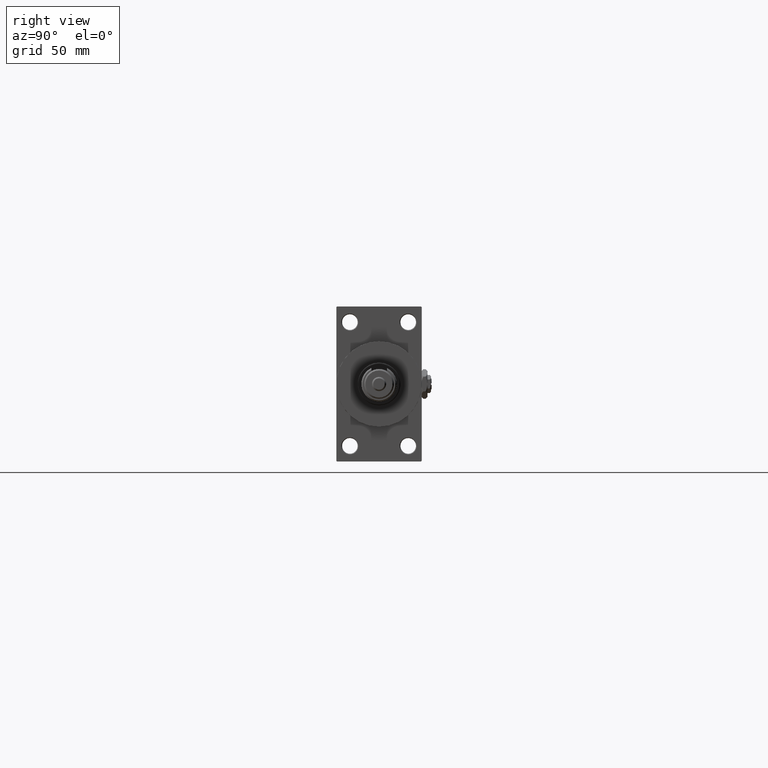
[diagram: clean part render]
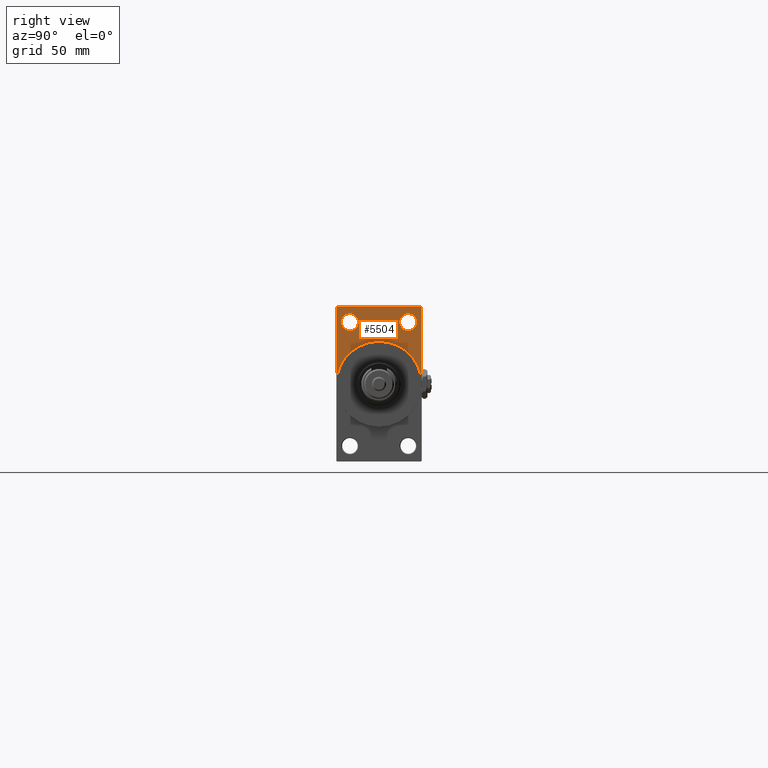
[diagram: same view with one face highlighted and labeled with its STEP entity id]
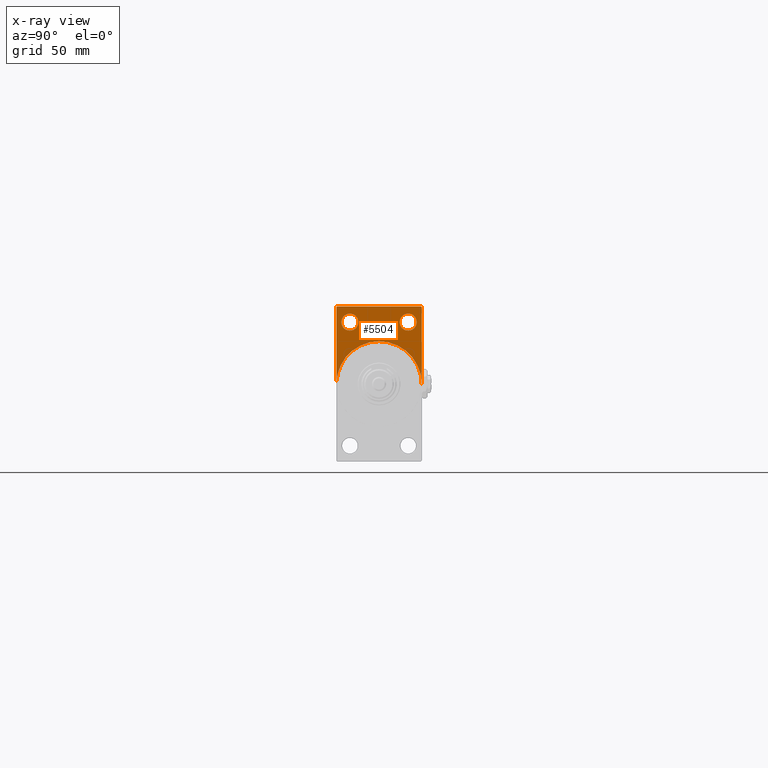
[diagram: x-ray of the same camera — body ghosted, the highlighted face saturated]
A machine part, right view. The second image highlights one B-rep face of the part: STEP entity #5504.
The next image is the same camera in x-ray: the body ghosted, the highlighted face saturated — about 0% of this face is hidden behind the body in this view.
In plain terms, the highlighted planar face has unit normal (-1, 0, 0).
Its self-contained STEP definition (entity closure, byte-faithful):
#132 = EDGE_CURVE ( 'NONE', #28613, #50891, #12298, .T. ) ;
#1145 = LINE ( 'NONE', #40411, #38935 ) ;
#1850 = CARTESIAN_POINT ( 'NONE',  ( 397.9999999999999432, -20.50000000000000000, 43.50000000000000000 ) ) ;
#3370 = AXIS2_PLACEMENT_3D ( 'NONE', #49989, #30745, #22863 ) ;
#4185 = ORIENTED_EDGE ( 'NONE', *, *, #4851, .T. ) ;
#4695 = CIRCLE ( 'NONE', #8037, 6.000000000000060396 ) ;
#4737 = CARTESIAN_POINT ( 'NONE',  ( 397.9999999999999432, -30.00000000000000000, 54.50000000000000000 ) ) ;
#4766 = CARTESIAN_POINT ( 'NONE',  ( 397.9999999999999432, 20.50000000000000000, 43.50000000000000000 ) ) ;
#4851 = EDGE_CURVE ( 'NONE', #13001, #11308, #49076, .T. ) ;
#5504 = ADVANCED_FACE ( 'NONE', ( #38656, #21825, #50771 ), #10458, .F. ) ;
#6592 = VERTEX_POINT ( 'NONE', #23387 ) ;
#6963 = AXIS2_PLACEMENT_3D ( 'NONE', #20991, #28884, #9374 ) ;
#7368 = ORIENTED_EDGE ( 'NONE', *, *, #42508, .F. ) ;
#8037 = AXIS2_PLACEMENT_3D ( 'NONE', #1850, #26361, #38205 ) ;
#9328 = ORIENTED_EDGE ( 'NONE', *, *, #36165, .T. ) ;
#9362 = EDGE_LOOP ( 'NONE', ( #9328, #12478 ) ) ;
#9374 = DIRECTION ( 'NONE',  ( 0.000000000000000000, 0.000000000000000000, 1.000000000000000000 ) ) ;
#9625 = VECTOR ( 'NONE', #45037, 1000.000000000000000 ) ;
#9941 = DIRECTION ( 'NONE',  ( -1.000000000000000000, 0.000000000000000000, -0.000000000000000000 ) ) ;
#10458 = PLANE ( 'NONE',  #41061 ) ;
#10492 = DIRECTION ( 'NONE',  ( -1.000000000000000000, 0.000000000000000000, -0.000000000000000000 ) ) ;
#10719 = CARTESIAN_POINT ( 'NONE',  ( 397.9999999999999432, 0.000000000000000000, 0.000000000000000000 ) ) ;
#11308 = VERTEX_POINT ( 'NONE', #18417 ) ;
#12298 = CIRCLE ( 'NONE', #42574, 6.000000000000060396 ) ;
#12478 = ORIENTED_EDGE ( 'NONE', *, *, #132, .T. ) ;
#12603 = EDGE_CURVE ( 'NONE', #17738, #6592, #15156, .T. ) ;
#12821 = CIRCLE ( 'NONE', #6963, 6.000000000000060396 ) ;
#13001 = VERTEX_POINT ( 'NONE', #47785 ) ;
#13113 = EDGE_CURVE ( 'NONE', #13001, #17738, #42475, .T. ) ;
#13237 = CARTESIAN_POINT ( 'NONE',  ( 397.9999999999999432, 29.49999999999999645, 54.49999999999999289 ) ) ;
#15156 = CIRCLE ( 'NONE', #3370, 30.00000000000000000 ) ;
#16046 = CARTESIAN_POINT ( 'NONE',  ( 397.9999999999999432, -20.50000000000000000, 49.50000000000005684 ) ) ;
#16168 = AXIS2_PLACEMENT_3D ( 'NONE', #4766, #20853, #36924 ) ;
#16278 = CARTESIAN_POINT ( 'NONE',  ( 397.9999999999999432, -30.00000000000000000, 54.00000000000000000 ) ) ;
#16295 = AXIS2_PLACEMENT_3D ( 'NONE', #44524, #25032, #49000 ) ;
#17459 = VERTEX_POINT ( 'NONE', #41769 ) ;
#17738 = VERTEX_POINT ( 'NONE', #45672 ) ;
#18417 = CARTESIAN_POINT ( 'NONE',  ( 397.9999999999999432, 29.49999999999999645, 54.49999999999999289 ) ) ;
#20853 = DIRECTION ( 'NONE',  ( -1.000000000000000000, 0.000000000000000000, -0.000000000000000000 ) ) ;
#20991 = CARTESIAN_POINT ( 'NONE',  ( 397.9999999999999432, 20.50000000000000000, 43.50000000000000000 ) ) ;
#21608 = LINE ( 'NONE', #4737, #9625 ) ;
#21825 = FACE_BOUND ( 'NONE', #23871, .T. ) ;
#22192 = CIRCLE ( 'NONE', #16295, 30.00000000000000000 ) ;
#22293 = VECTOR ( 'NONE', #39482, 1000.000000000000114 ) ;
#22759 = CARTESIAN_POINT ( 'NONE',  ( 397.9999999999999432, -20.50000000000000000, 37.49999999999993605 ) ) ;
#22863 = DIRECTION ( 'NONE',  ( 0.000000000000000000, 0.000000000000000000, -1.000000000000000000 ) ) ;
#23255 = VERTEX_POINT ( 'NONE', #42137 ) ;
#23387 = CARTESIAN_POINT ( 'NONE',  ( 397.9999999999999432, 0.000000000000000000, 30.00000000000000000 ) ) ;
#23415 = VECTOR ( 'NONE', #32495, 1000.000000000000114 ) ;
#23871 = EDGE_LOOP ( 'NONE', ( #36804, #40127 ) ) ;
#25032 = DIRECTION ( 'NONE',  ( 1.000000000000000000, 0.000000000000000000, 0.000000000000000000 ) ) ;
#26361 = DIRECTION ( 'NONE',  ( -1.000000000000000000, 0.000000000000000000, -0.000000000000000000 ) ) ;
#27095 = DIRECTION ( 'NONE',  ( 0.000000000000000000, 0.000000000000000000, 1.000000000000000000 ) ) ;
#27367 = LINE ( 'NONE', #16278, #22293 ) ;
#28355 = EDGE_CURVE ( 'NONE', #36566, #46909, #43073, .T. ) ;
#28613 = VERTEX_POINT ( 'NONE', #16046 ) ;
#28652 = VECTOR ( 'NONE', #50654, 1000.000000000000000 ) ;
#28703 = ORIENTED_EDGE ( 'NONE', *, *, #12603, .F. ) ;
#28884 = DIRECTION ( 'NONE',  ( -1.000000000000000000, 0.000000000000000000, -0.000000000000000000 ) ) ;
#28960 = EDGE_CURVE ( 'NONE', #46909, #36566, #12821, .T. ) ;
#29243 = EDGE_CURVE ( 'NONE', #11308, #29598, #1145, .T. ) ;
#29598 = VERTEX_POINT ( 'NONE', #44038 ) ;
#30745 = DIRECTION ( 'NONE',  ( 1.000000000000000000, 0.000000000000000000, 0.000000000000000000 ) ) ;
#30747 = DIRECTION ( 'NONE',  ( -0.000000000000000000, 0.000000000000000000, 1.000000000000000000 ) ) ;
#31267 = ORIENTED_EDGE ( 'NONE', *, *, #29243, .T. ) ;
#32495 = DIRECTION ( 'NONE',  ( 0.000000000000000000, -0.7071067811865474617, 0.7071067811865474617 ) ) ;
#32605 = EDGE_CURVE ( 'NONE', #23255, #17459, #21608, .T. ) ;
#33571 = EDGE_CURVE ( 'NONE', #29598, #23255, #27367, .T. ) ;
#36165 = EDGE_CURVE ( 'NONE', #50891, #28613, #4695, .T. ) ;
#36566 = VERTEX_POINT ( 'NONE', #43325 ) ;
#36804 = ORIENTED_EDGE ( 'NONE', *, *, #28960, .T. ) ;
#36924 = DIRECTION ( 'NONE',  ( 0.000000000000000000, 0.000000000000000000, 1.000000000000000000 ) ) ;
#36997 = DIRECTION ( 'NONE',  ( 0.000000000000000000, -1.000000000000000000, 1.156482317317871478E-16 ) ) ;
#37553 = EDGE_LOOP ( 'NONE', ( #31267, #38566, #48781, #7368, #28703, #41980, #4185 ) ) ;
#37760 = CARTESIAN_POINT ( 'NONE',  ( 397.9999999999999432, 29.99999999999999645, 54.49999999999999289 ) ) ;
#38205 = DIRECTION ( 'NONE',  ( 0.000000000000000000, 0.000000000000000000, 1.000000000000000000 ) ) ;
#38566 = ORIENTED_EDGE ( 'NONE', *, *, #33571, .T. ) ;
#38656 = FACE_BOUND ( 'NONE', #9362, .T. ) ;
#38935 = VECTOR ( 'NONE', #36997, 1000.000000000000000 ) ;
#39482 = DIRECTION ( 'NONE',  ( -0.000000000000000000, -0.7071067811865451302, -0.7071067811865500152 ) ) ;
#40127 = ORIENTED_EDGE ( 'NONE', *, *, #28355, .T. ) ;
#40411 = CARTESIAN_POINT ( 'NONE',  ( 397.9999999999999432, 29.99999999999999645, 54.49999999999999289 ) ) ;
#41061 = AXIS2_PLACEMENT_3D ( 'NONE', #10719, #9941, #30747 ) ;
#41769 = CARTESIAN_POINT ( 'NONE',  ( 397.9999999999999432, -30.00000000000000000, 0.000000000000000000 ) ) ;
#41980 = ORIENTED_EDGE ( 'NONE', *, *, #13113, .F. ) ;
#42137 = CARTESIAN_POINT ( 'NONE',  ( 397.9999999999999432, -30.00000000000000000, 54.00000000000000000 ) ) ;
#42475 = LINE ( 'NONE', #37760, #28652 ) ;
#42508 = EDGE_CURVE ( 'NONE', #6592, #17459, #22192, .T. ) ;
#42574 = AXIS2_PLACEMENT_3D ( 'NONE', #46594, #10492, #27095 ) ;
#43073 = CIRCLE ( 'NONE', #16168, 6.000000000000060396 ) ;
#43325 = CARTESIAN_POINT ( 'NONE',  ( 397.9999999999999432, 20.50000000000000000, 49.50000000000005684 ) ) ;
#44038 = CARTESIAN_POINT ( 'NONE',  ( 397.9999999999999432, -29.50000000000000355, 54.50000000000000000 ) ) ;
#44524 = CARTESIAN_POINT ( 'NONE',  ( 397.9999999999999432, 0.000000000000000000, 0.000000000000000000 ) ) ;
#45037 = DIRECTION ( 'NONE',  ( 0.000000000000000000, 0.000000000000000000, -1.000000000000000000 ) ) ;
#45672 = CARTESIAN_POINT ( 'NONE',  ( 397.9999999999999432, 30.00000000000000000, 0.000000000000000000 ) ) ;
#46594 = CARTESIAN_POINT ( 'NONE',  ( 397.9999999999999432, -20.50000000000000000, 43.50000000000000000 ) ) ;
#46814 = CARTESIAN_POINT ( 'NONE',  ( 397.9999999999999432, 20.50000000000000000, 37.49999999999993605 ) ) ;
#46909 = VERTEX_POINT ( 'NONE', #46814 ) ;
#47785 = CARTESIAN_POINT ( 'NONE',  ( 397.9999999999999432, 29.99999999999999645, 53.99999999999999289 ) ) ;
#48781 = ORIENTED_EDGE ( 'NONE', *, *, #32605, .T. ) ;
#49000 = DIRECTION ( 'NONE',  ( 0.000000000000000000, 0.000000000000000000, -1.000000000000000000 ) ) ;
#49076 = LINE ( 'NONE', #13237, #23415 ) ;
#49989 = CARTESIAN_POINT ( 'NONE',  ( 397.9999999999999432, 0.000000000000000000, 0.000000000000000000 ) ) ;
#50654 = DIRECTION ( 'NONE',  ( 0.000000000000000000, 0.000000000000000000, -1.000000000000000000 ) ) ;
#50771 = FACE_OUTER_BOUND ( 'NONE', #37553, .T. ) ;
#50891 = VERTEX_POINT ( 'NONE', #22759 ) ;